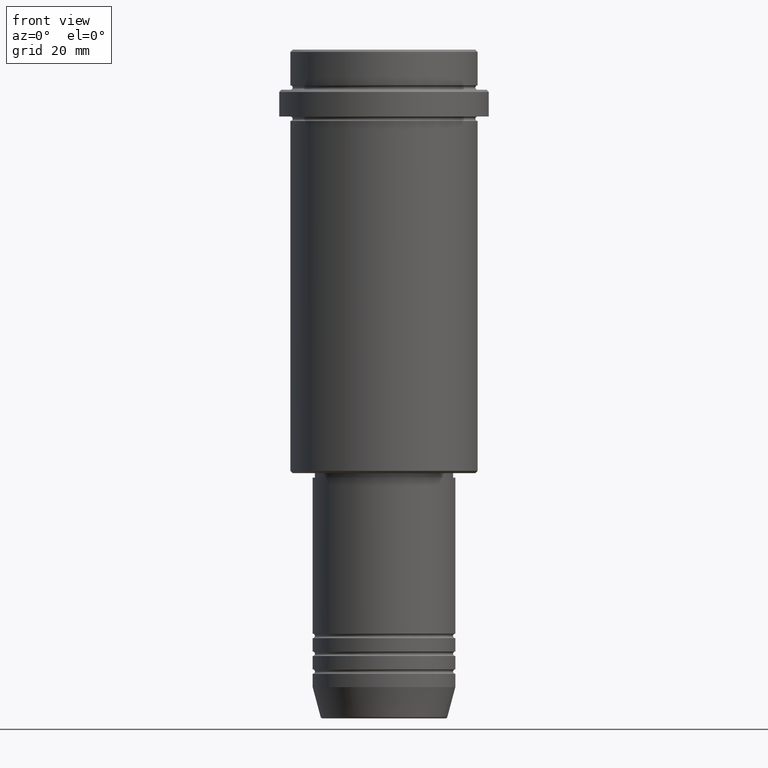
[diagram: clean part render]
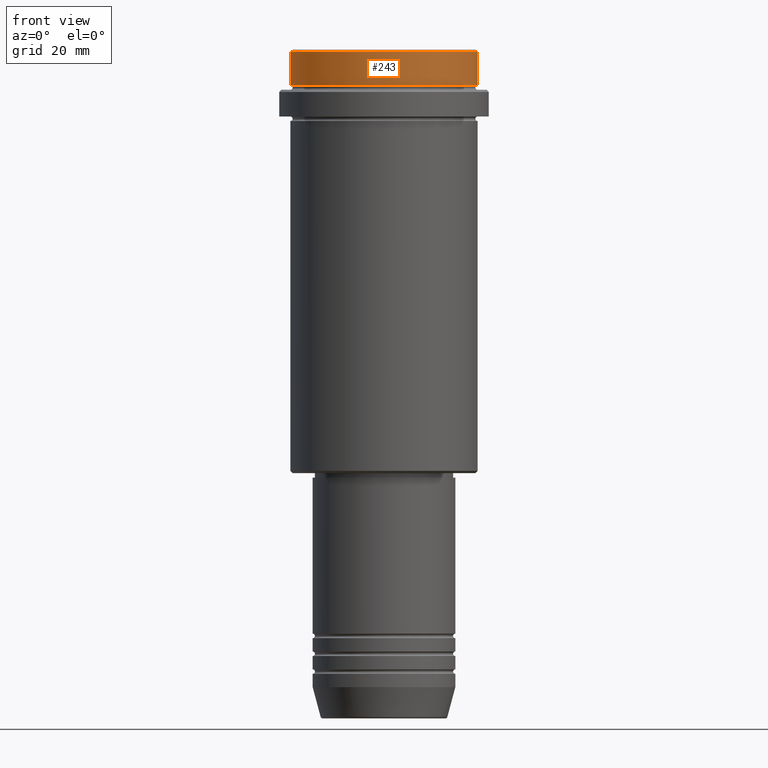
[diagram: same view with one face highlighted and labeled with its STEP entity id]
A machine part, front view. The second image highlights one B-rep face of the part: STEP entity #243.
In plain terms, the highlighted cylindrical surface (partial cylindrical patch) has radius 21 mm, axis along (-0, -0, 1).
Its self-contained STEP definition (entity closure, byte-faithful):
#7 = CIRCLE ( 'NONE', #504, 21.00000000000000000 ) ;
#9 = DIRECTION ( 'NONE',  ( 1.000000000000000000, 0.000000000000000000, 0.000000000000000000 ) ) ;
#186 = LINE ( 'NONE', #860, #209 ) ;
#190 = DIRECTION ( 'NONE',  ( -0.000000000000000000, -0.000000000000000000, 1.000000000000000000 ) ) ;
#209 = VECTOR ( 'NONE', #1083, 1000.000000000000000 ) ;
#238 = CARTESIAN_POINT ( 'NONE',  ( 21.00000000000000000, 0.000000000000000000, -0.5000000000000108802 ) ) ;
#240 = ORIENTED_EDGE ( 'NONE', *, *, #966, .T. ) ;
#243 = ADVANCED_FACE ( 'NONE', ( #996 ), #420, .T. ) ;
#263 = CARTESIAN_POINT ( 'NONE',  ( 21.00000000000000000, 0.000000000000000000, -7.999999999999998224 ) ) ;
#264 = VERTEX_POINT ( 'NONE', #238 ) ;
#301 = AXIS2_PLACEMENT_3D ( 'NONE', #1398, #745, #968 ) ;
#320 = AXIS2_PLACEMENT_3D ( 'NONE', #1093, #1307, #9 ) ;
#391 = CARTESIAN_POINT ( 'NONE',  ( -21.00000000000000000, 2.571758278209441661E-15, -0.5000000000000108802 ) ) ;
#420 = CYLINDRICAL_SURFACE ( 'NONE', #320, 21.00000000000000000 ) ;
#504 = AXIS2_PLACEMENT_3D ( 'NONE', #1409, #529, #836 ) ;
#529 = DIRECTION ( 'NONE',  ( -0.000000000000000000, -0.000000000000000000, 1.000000000000000000 ) ) ;
#567 = ORIENTED_EDGE ( 'NONE', *, *, #728, .F. ) ;
#725 = CARTESIAN_POINT ( 'NONE',  ( -21.00000000000000000, 2.571758278209441661E-15, 0.000000000000000000 ) ) ;
#728 = EDGE_CURVE ( 'NONE', #1298, #1018, #1412, .T. ) ;
#745 = DIRECTION ( 'NONE',  ( 0.000000000000000000, 0.000000000000000000, -1.000000000000000000 ) ) ;
#764 = ORIENTED_EDGE ( 'NONE', *, *, #1009, .T. ) ;
#786 = ORIENTED_EDGE ( 'NONE', *, *, #1019, .T. ) ;
#788 = CARTESIAN_POINT ( 'NONE',  ( -21.00000000000000000, 2.571758278209441661E-15, -7.999999999999998224 ) ) ;
#836 = DIRECTION ( 'NONE',  ( 1.000000000000000000, 0.000000000000000000, 0.000000000000000000 ) ) ;
#860 = CARTESIAN_POINT ( 'NONE',  ( 21.00000000000000000, 0.000000000000000000, 0.000000000000000000 ) ) ;
#966 = EDGE_CURVE ( 'NONE', #264, #1018, #1403, .T. ) ;
#968 = DIRECTION ( 'NONE',  ( 1.000000000000000000, 0.000000000000000000, 0.000000000000000000 ) ) ;
#996 = FACE_OUTER_BOUND ( 'NONE', #1135, .T. ) ;
#1009 = EDGE_CURVE ( 'NONE', #1319, #264, #186, .T. ) ;
#1018 = VERTEX_POINT ( 'NONE', #391 ) ;
#1019 = EDGE_CURVE ( 'NONE', #1298, #1319, #7, .T. ) ;
#1083 = DIRECTION ( 'NONE',  ( -0.000000000000000000, -0.000000000000000000, 1.000000000000000000 ) ) ;
#1093 = CARTESIAN_POINT ( 'NONE',  ( 0.000000000000000000, 0.000000000000000000, 0.000000000000000000 ) ) ;
#1135 = EDGE_LOOP ( 'NONE', ( #567, #786, #764, #240 ) ) ;
#1218 = VECTOR ( 'NONE', #190, 1000.000000000000000 ) ;
#1298 = VERTEX_POINT ( 'NONE', #788 ) ;
#1307 = DIRECTION ( 'NONE',  ( -0.000000000000000000, -0.000000000000000000, 1.000000000000000000 ) ) ;
#1319 = VERTEX_POINT ( 'NONE', #263 ) ;
#1398 = CARTESIAN_POINT ( 'NONE',  ( 0.000000000000000000, 0.000000000000000000, -0.5000000000000108802 ) ) ;
#1403 = CIRCLE ( 'NONE', #301, 21.00000000000000000 ) ;
#1409 = CARTESIAN_POINT ( 'NONE',  ( 0.000000000000000000, 0.000000000000000000, -7.999999999999998224 ) ) ;
#1412 = LINE ( 'NONE', #725, #1218 ) ;